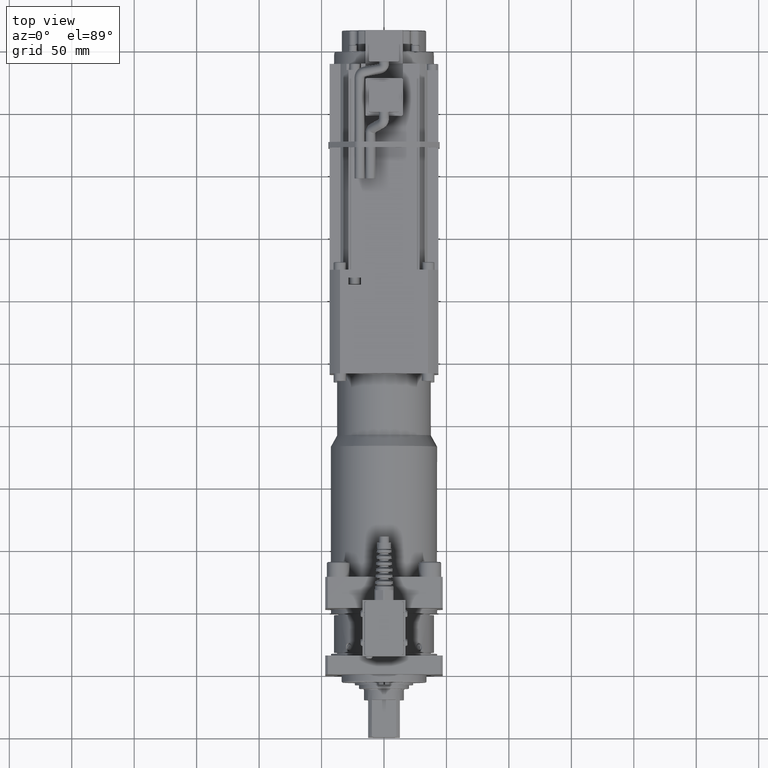
[diagram: clean part render]
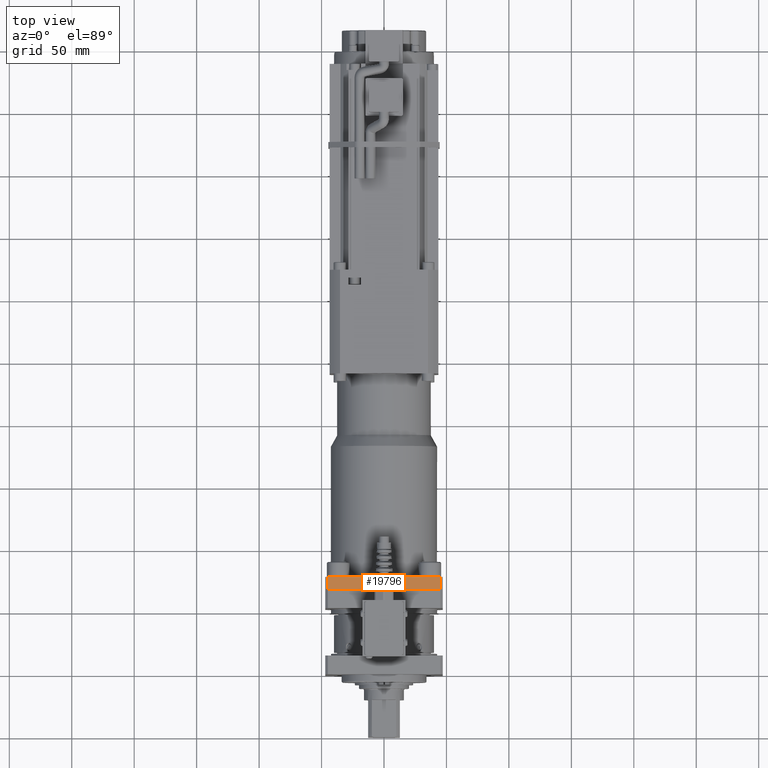
[diagram: same view with one face highlighted and labeled with its STEP entity id]
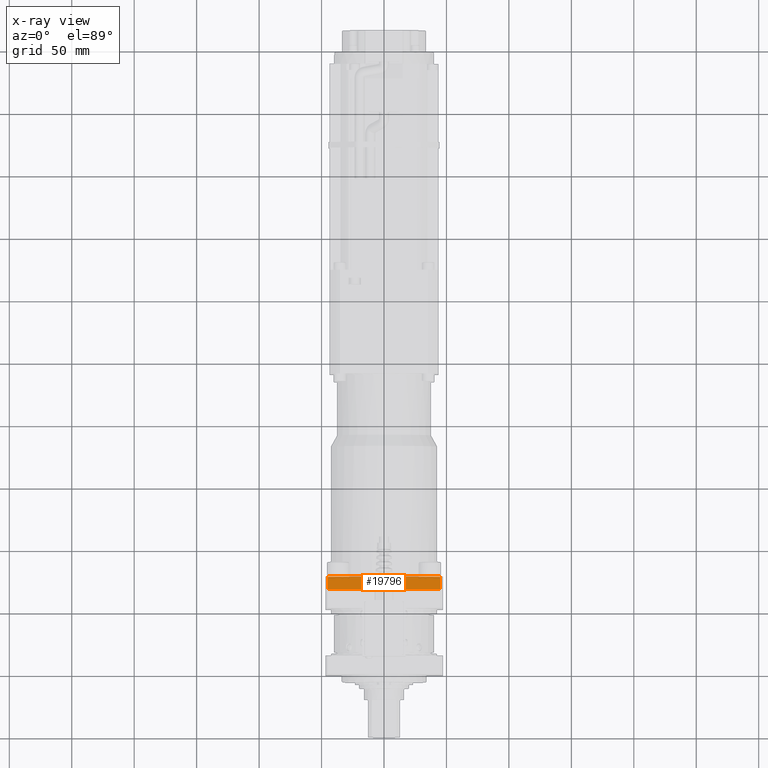
[diagram: x-ray of the same camera — body ghosted, the highlighted face saturated]
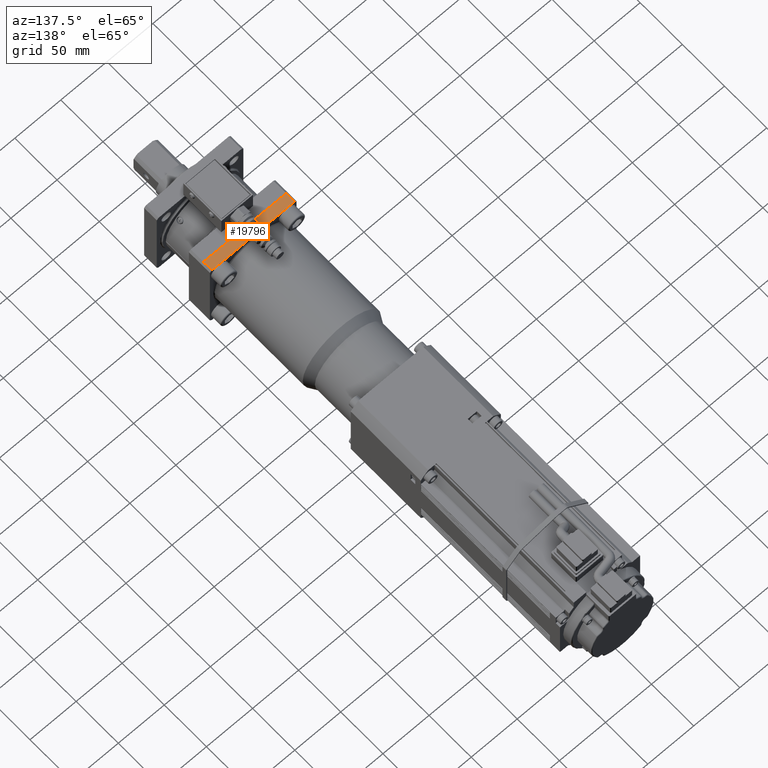
[diagram: same view with one face highlighted and labeled with its STEP entity id]
A machine part, top view. The second image highlights one B-rep face of the part: STEP entity #19796.
The next image is the same camera in x-ray: the body ghosted, the highlighted face saturated — about 0% of this face is hidden behind the body in this view.
A second angle (auxiliary view) of the same face is appended — the face is thin or edge-on in the first view.
In plain terms, the highlighted planar face has unit normal (-0, 0, 1).
Its self-contained STEP definition (entity closure, byte-faithful):
#571=PLANE('',#21144);
#1550=FACE_OUTER_BOUND('',#2699,.T.);
#2699=EDGE_LOOP('',(#14229,#14230,#14231,#14232));
#4799=LINE('',#30413,#6592);
#4821=LINE('',#30521,#6614);
#4826=LINE('',#30537,#6619);
#4834=LINE('',#30564,#6627);
#6592=VECTOR('',#23653,10.);
#6614=VECTOR('',#23783,10.);
#6619=VECTOR('',#23800,10.);
#6627=VECTOR('',#23828,10.);
#8513=VERTEX_POINT('',#30352);
#8522=VERTEX_POINT('',#30372);
#8566=VERTEX_POINT('',#30520);
#8571=VERTEX_POINT('',#30536);
#10643=EDGE_CURVE('',#8522,#8513,#4799,.T.);
#10697=EDGE_CURVE('',#8566,#8522,#4821,.T.);
#10705=EDGE_CURVE('',#8513,#8571,#4826,.T.);
#10718=EDGE_CURVE('',#8571,#8566,#4834,.T.);
#14229=ORIENTED_EDGE('',*,*,#10697,.T.);
#14230=ORIENTED_EDGE('',*,*,#10643,.T.);
#14231=ORIENTED_EDGE('',*,*,#10705,.T.);
#14232=ORIENTED_EDGE('',*,*,#10718,.T.);
#19796=ADVANCED_FACE('',(#1550),#571,.T.);
#21144=AXIS2_PLACEMENT_3D('',#30563,#23826,#23827);
#23653=DIRECTION('',(1.,3.91843420455937E-16,0.));
#23783=DIRECTION('',(3.91843420455937E-16,-1.,1.20204062883603E-16));
#23800=DIRECTION('',(-3.91843420455937E-16,1.,-1.20204062883603E-16));
#23826=DIRECTION('center_axis',(-2.14691128809148E-16,1.20204062883603E-16,
1.));
#23827=DIRECTION('ref_axis',(1.,3.91843420455937E-16,2.14691128809148E-16));
#23828=DIRECTION('',(-1.,-3.91843420455937E-16,-2.14691128809148E-16));
#30352=CARTESIAN_POINT('',(44.8998886412873,68.,47.));
#30372=CARTESIAN_POINT('',(-44.8998886412873,68.,47.));
#30413=CARTESIAN_POINT('',(2.44994432064363,68.,47.));
#30520=CARTESIAN_POINT('',(-44.8998886412873,78.,47.));
#30521=CARTESIAN_POINT('',(-44.8998886412873,73.,47.));
#30536=CARTESIAN_POINT('',(44.8998886412872,78.,47.));
#30537=CARTESIAN_POINT('',(44.8998886412873,73.,47.));
#30563=CARTESIAN_POINT('Origin',(-47.,68.,47.));
#30564=CARTESIAN_POINT('',(8.99999999999995,78.,47.));